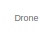
[diagram: root canvas - part 1/6, top left region]
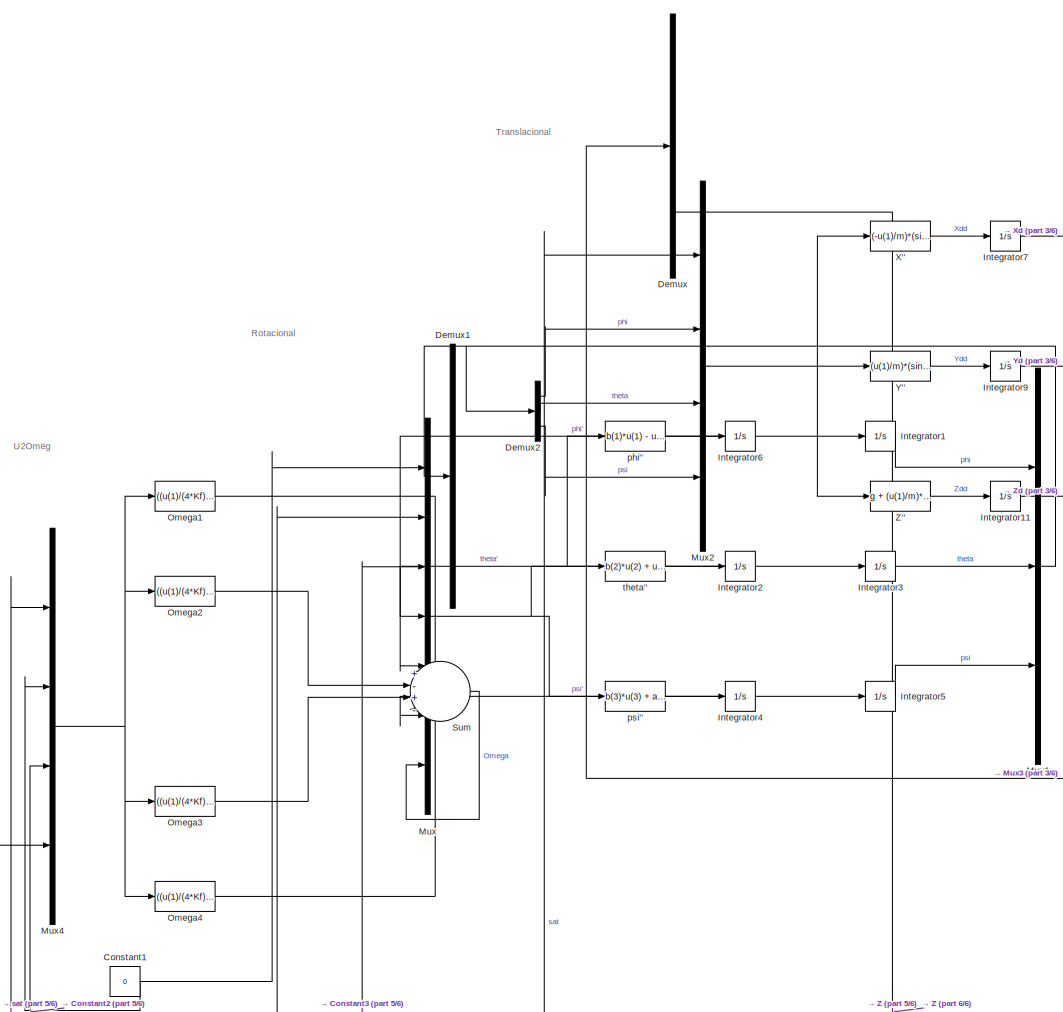
[diagram: root canvas - part 2/6, top center region]
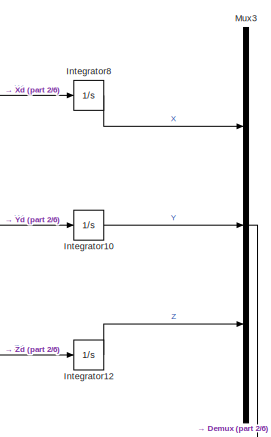
[diagram: root canvas - part 3/6, top right region]
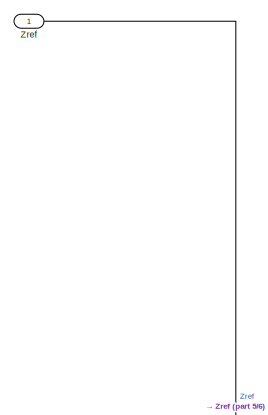
[diagram: root canvas - part 4/6, middle left region]
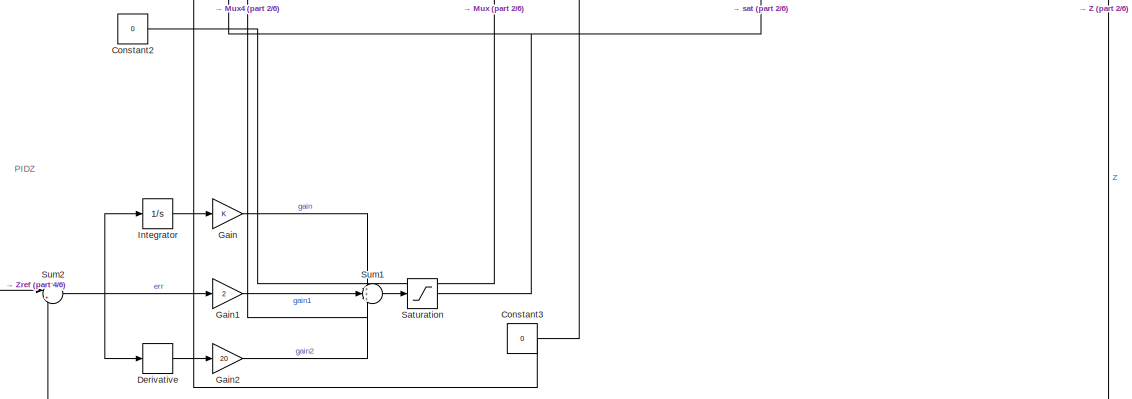
[diagram: root canvas - part 5/6, central region]
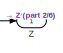
[diagram: root canvas - part 6/6, bottom right region]
MODEL slx_d07ffd205705
KIND model
CONFIG AbsTol = auto
CONFIG EnableMultiTasking = on
CONFIG FixedStep = auto
CONFIG MaxStep = auto
CONFIG MinStep = auto
CONFIG RelTol = 1e-3
CONFIG SampleTimeConstraint = Unconstrained
CONFIG Solver = FixedStepAuto
CONFIG SolverName = FixedStepAuto
CONFIG StartTime = 0.0
CONFIG StopTime = 30.0
WORKSPACE source: external: MAT-File  (data not in archive)
BLOCK [Constant] Constant1
  Value = 0
BLOCK [Constant] Constant2
  Value = 0
BLOCK [Constant] Constant3
  Value = 0
BLOCK [Demux] Demux
  DisplayOption = bar
  Outputs = 3
  Ports = [1, 3]
BLOCK [Demux] Demux1
  DisplayOption = bar
  Outputs = 3
  Ports = [1, 3]
BLOCK [Demux] Demux2
  DisplayOption = bar
  Outputs = 3
  Ports = [1, 3]
BLOCK [Derivative] Derivative
BLOCK [Gain] Gain
  OutDataTypeStr = Inherit: Inherit via internal rule
  ParamDataTypeStr = Inherit: Inherit via internal rule
  SaturateOnIntegerOverflow = off
BLOCK [Gain] Gain1
  Gain = 2
  OutDataTypeStr = Inherit: Inherit via internal rule
  ParamDataTypeStr = Inherit: Inherit via internal rule
  SaturateOnIntegerOverflow = off
BLOCK [Gain] Gain2
  Gain = 20
  OutDataTypeStr = Inherit: Inherit via internal rule
  ParamDataTypeStr = Inherit: Inherit via internal rule
  SaturateOnIntegerOverflow = off
BLOCK [Integrator] Integrator
  Ports = [1, 1]
BLOCK [Integrator] Integrator1
  Ports = [1, 1]
BLOCK [Integrator] Integrator10
  Ports = [1, 1]
BLOCK [Integrator] Integrator11
  Ports = [1, 1]
BLOCK [Integrator] Integrator12
  Ports = [1, 1]
BLOCK [Integrator] Integrator2
  Ports = [1, 1]
BLOCK [Integrator] Integrator3
  Ports = [1, 1]
BLOCK [Integrator] Integrator4
  Ports = [1, 1]
BLOCK [Integrator] Integrator5
  Ports = [1, 1]
BLOCK [Integrator] Integrator6
  Ports = [1, 1]
BLOCK [Integrator] Integrator7
  Ports = [1, 1]
BLOCK [Integrator] Integrator8
  Ports = [1, 1]
BLOCK [Integrator] Integrator9
  Ports = [1, 1]
BLOCK [Mux] Mux
  DisplayOption = bar
  Inputs = 7
  Ports = [7, 1]
BLOCK [Mux] Mux1
  DisplayOption = bar
  Inputs = 3
  Ports = [3, 1]
BLOCK [Mux] Mux2
  DisplayOption = bar
  Ports = [4, 1]
BLOCK [Mux] Mux3
  DisplayOption = bar
  Inputs = 3
  Ports = [3, 1]
BLOCK [Mux] Mux4
  DisplayOption = bar
  Ports = [4, 1]
BLOCK [Fcn] Omega1
  Expr = ((u(1)/(4*Kf)) + (u(3)/(2*Kf)) + (u(4)/(4*Km)))^(1/2)
BLOCK [Fcn] Omega2
  Expr = ((u(1)/(4*Kf)) - (u(2)/(2*Kf)) - (u(4)/(4*Km)))^(1/2)
BLOCK [Fcn] Omega3
  Expr = ((u(1)/(4*Kf)) - (u(3)/(2*Kf)) + (u(4)/(4*Km)))^(1/2)
BLOCK [Fcn] Omega4
  Expr = ((u(1)/(4*Kf)) + (u(2)/(2*Kf)) - (u(4)/(4*Km)))^(1/2)
BLOCK [Saturate] Saturation
  InputPortMap = u0
  LowerLimit = -15
  Ports = [1, 1]
  UpperLimit = 15
BLOCK [Sum] Sum
  IconShape = round
  InputSameDT = off
  Inputs = +-+-
  OutDataTypeStr = Inherit: Inherit via internal rule
  Ports = [4, 1]
  SaturateOnIntegerOverflow = off
BLOCK [Sum] Sum1
  IconShape = round
  InputSameDT = off
  Inputs = +++
  OutDataTypeStr = Inherit: Inherit via internal rule
  Ports = [3, 1]
  SaturateOnIntegerOverflow = off
BLOCK [Sum] Sum2
  IconShape = round
  InputSameDT = off
  Inputs = |+-
  OutDataTypeStr = Inherit: Inherit via internal rule
  Ports = [2, 1]
  SaturateOnIntegerOverflow = off
BLOCK [Fcn] X''
  Expr = (-u(1)/m)*(sin(u(2))*sin(u(4)) + cos(u(2))*sin(u(3))*cos(u(4)))
BLOCK [Fcn] Y''
  Expr = (u(1)/m)*(sin(u(2))*cos(u(4)) - cos(u(2))*sin(u(3))*sin(u(4)))
BLOCK [Outport] Z
  IconDisplay = Port number
BLOCK [Fcn] Z''
  Expr = g + (u(1)/m)*(cos(u(2))*cos(u(3)))
BLOCK [Inport] Zref
  IconDisplay = Port number
BLOCK [Fcn] phi''
  Expr = b(1)*u(1) - u(5)*u(7)*a(2) + a(1)*u(5)*u(6)
BLOCK [Fcn] psi''
  Expr = b(3)*u(3) + a(5)*u(4)*u(5)
BLOCK [Fcn] theta''
  Expr = b(2)*u(2) + u(4)*u(7)*a(4) + a(3)*u(4)*u(6)
ANNOTATION (root): Drone
ANNOTATION (root): PIDZ
ANNOTATION (root): Rotacional
ANNOTATION (root): Translacional
ANNOTATION (root): U2Omeg
NET Constant1:1 -> Mux4:2, Mux:1
NET Constant2:1 -> Mux4:3, Mux:2
NET Constant3:1 -> Mux4:4, Mux:3
LINE Demux2:1 -> Mux2:2
LINE Demux2:2 -> Mux2:3
LINE Demux2:3 -> Mux2:4
NET Demux:3 -> Sum2:2, Z:1
LINE Derivative:1 -> Gain2:1
LINE Gain1:1 -> Sum1:2
LINE Gain2:1 -> Sum1:3
LINE Gain:1 -> Sum1:1
LINE Integrator10:1 -> Mux3:2
LINE Integrator11:1 -> Integrator12:1
LINE Integrator12:1 -> Mux3:3
LINE Integrator1:1 -> Mux1:1
NET Integrator2:1 -> Integrator3:1, Mux:5
LINE Integrator3:1 -> Mux1:2
NET Integrator4:1 -> Integrator5:1, Mux:6
LINE Integrator5:1 -> Mux1:3
NET Integrator6:1 -> Integrator1:1, Mux:4
LINE Integrator7:1 -> Integrator8:1
LINE Integrator8:1 -> Mux3:1
LINE Integrator9:1 -> Integrator10:1
LINE Integrator:1 -> Gain:1
NET Mux1:1 -> Demux1:1, Demux2:1
NET Mux2:1 -> X'':1, Y'':1, Z'':1
LINE Mux3:1 -> Demux:1
NET Mux4:1 -> Omega1:1, Omega2:1, Omega3:1, Omega4:1
NET Mux:1 -> phi'':1, psi'':1, theta'':1
LINE Omega1:1 -> Sum:1
LINE Omega2:1 -> Sum:2
LINE Omega3:1 -> Sum:3
LINE Omega4:1 -> Sum:4
NET Saturation:1 -> Mux2:1, Mux4:1
LINE Sum1:1 -> Saturation:1
NET Sum2:1 -> Derivative:1, Gain1:1, Integrator:1
LINE Sum:1 -> Mux:7
LINE X'':1 -> Integrator7:1
LINE Y'':1 -> Integrator9:1
LINE Z'':1 -> Integrator11:1
LINE Zref:1 -> Sum2:1
LINE phi'':1 -> Integrator6:1
LINE psi'':1 -> Integrator4:1
LINE theta'':1 -> Integrator2:1
note: NET lines group one-source signal fan-out (src -> all destinations, sorted); 1:1 wires keep LINE
